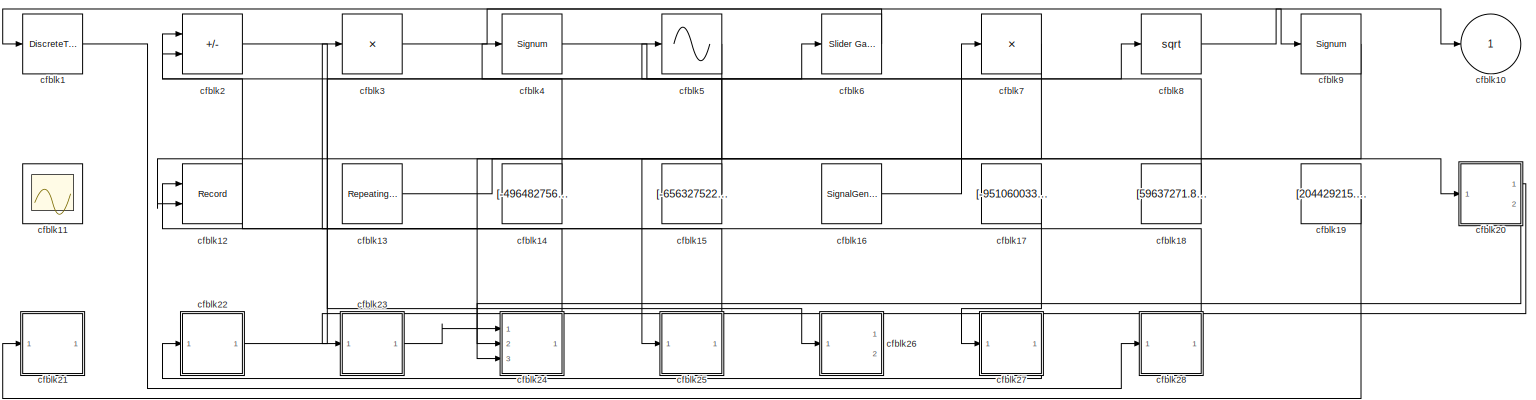
[diagram: root canvas - part 1/1, most of the canvas]
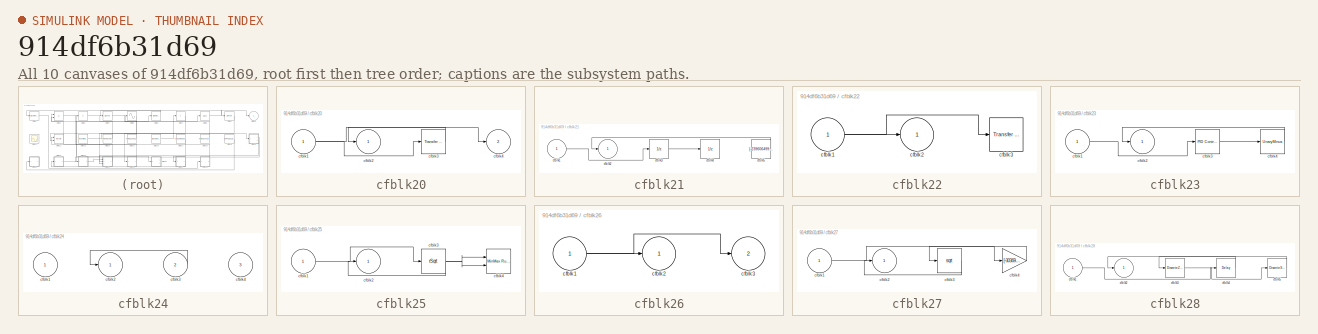
[diagram: thumbnail index - all 10 canvases of the model, root first then tree order]
MODEL slx_914df6b31d69
KIND model
CONFIG AbsTol = auto
CONFIG EnableMultiTasking = off
CONFIG FixedStep = auto
CONFIG MaxStep = auto
CONFIG MinStep = auto
CONFIG RelTol = 1e-3
CONFIG SampleTimeConstraint = Unconstrained
CONFIG SolverName = VariableStepAuto
CONFIG StartTime = 0.0
CONFIG StopTime = 10.0
BLOCK [DiscreteTransferFcn] cfblk1
  InputPortMap = u0
  Ports = [1, 1]
  SampleTime = 1
BLOCK [Outport] cfblk10
BLOCK [Scope] cfblk11
  Floating = on
  NumInputPorts = 1
  Ports = []
BLOCK [Record] cfblk12
  CompatibilityTag = XY
  FileSettingsInternal = {"entries":[{"content":{"excelSettings":{"content":{},"type":"Streamout.ExcelSettings"}},"type":"Streamout.FileSettingStorage","uuid":"817101b1-7ee6-489f-8bf2-f4af326754e9"}],"packageUris":["http://schema.mathworks.com/mf0/streamout_blocks/R2020a"],"version":"1.0"}
  Layout = [1 1]
  Ports = [2]
  SignalsInternal = {"entries":[{"content":{"signals":[{"content":{"blockPath":["sampleModel27/cfblk12"],"channel":[],"dimensions":[1],"domain":"sampleModel27/cfblk12","lineColor":"#a2142f","plots":[1],"port":1,"sid":[""],"signalID":1067,"signalName":"cfblk24"},"type":"RecordBlkView.Signal","uuid":"11552be4-8ecd-494b-946a-d208da3a0090"},{"content":{"blockPath":["sampleModel27/cfblk12"],"channel":[],"dimensions":[1],"...<+378ch>
  VisualizationBindings = {"xyplotplugin":{"info":[{"series":[{"bindingParametersList":[{"parameter":"X-Axis","signalID":1067,"signalName":"cfblk24"},{"parameter":"Y-Axis","signalID":1071,"signalName":"cfblk9"}],"seriesID":40632}],"subplotID":1}]}}
BLOCK [Reference] cfblk13  REF=simulink/Sources/Repeating
Sequence
Stair
  Ports = [0, 1]
  SourceBlock = simulink/Sources/Repeating\nSequence\nStair
  SourceProductBaseCode = SL
  SourceType = Repeating Sequence Stair
BLOCK [Constant] cfblk14
  SampleTime = 1
  Value = [-496482756.698732]
BLOCK [Constant] cfblk15
  SampleTime = 1
  Value = [-656327522.468899]
BLOCK [SignalGenerator] cfblk16
  Amplitude = [-317971779.391681]
  Ports = [0, 1]
BLOCK [Constant] cfblk17
  SampleTime = 1
  Value = [-951060033.355853]
BLOCK [Constant] cfblk18
  SampleTime = 1
  Value = [59637271.894851]
BLOCK [Constant] cfblk19
  SampleTime = 1
  Value = [204429215.996094]
BLOCK [Sum] cfblk2
  IconShape = rectangular
  Inputs = +-
  Ports = [2, 1]
BLOCK [SubSystem] cfblk20
  Ports = [1, 2]
  RequestExecContextInheritance = off
BLOCK [Inport] cfblk20/cfblk1
BLOCK [Outport] cfblk20/cfblk2
BLOCK [Reference] cfblk20/cfblk3  REF=simulink/Discrete/Transfer Fcn
Real Zero
  Ports = [1, 1]
  SourceBlock = simulink/Discrete/Transfer Fcn\nReal Zero
  SourceProductBaseCode = SL
  SourceType = Transfer Fcn Real Zero
BLOCK [Outport] cfblk20/cfblk4
  Port = 2
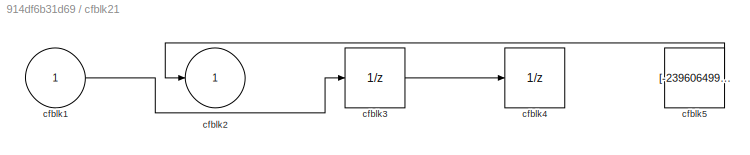
BLOCK [SubSystem] cfblk21
  Ports = [1, 1]
  RequestExecContextInheritance = off
BLOCK [Inport] cfblk21/cfblk1
BLOCK [Outport] cfblk21/cfblk2
BLOCK [UnitDelay] cfblk21/cfblk3
  HasFrameUpgradeWarning = on
BLOCK [UnitDelay] cfblk21/cfblk4
  HasFrameUpgradeWarning = on
BLOCK [Constant] cfblk21/cfblk5
  SampleTime = 1
  Value = [-239606499.983501]
BLOCK [SubSystem] cfblk22
  Ports = [1, 1]
  RequestExecContextInheritance = off
BLOCK [Inport] cfblk22/cfblk1
BLOCK [Outport] cfblk22/cfblk2
BLOCK [Reference] cfblk22/cfblk3  REF=simulink/Discrete/Transfer Fcn
Lead or Lag
  Ports = [1, 1]
  SourceBlock = simulink/Discrete/Transfer Fcn\nLead or Lag
  SourceProductBaseCode = SL
  SourceType = Lead or Lag Compensator
BLOCK [SubSystem] cfblk23
  Ports = [1, 1]
  RequestExecContextInheritance = off
BLOCK [Inport] cfblk23/cfblk1
BLOCK [Outport] cfblk23/cfblk2
BLOCK [Reference] cfblk23/cfblk3  REF=slpidlib/PID Controller
  Ports = [1, 1]
  SourceBlock = slpidlib/PID Controller
  SourceProductBaseCode = SL
  SourceType = PID 1dof
BLOCK [UnaryMinus] cfblk23/cfblk4
BLOCK [SubSystem] cfblk24
  Ports = [3, 1]
  RequestExecContextInheritance = off
BLOCK [Inport] cfblk24/cfblk1
BLOCK [Outport] cfblk24/cfblk2
BLOCK [Inport] cfblk24/cfblk3
  Port = 2
BLOCK [Inport] cfblk24/cfblk4
  Port = 3
BLOCK [SubSystem] cfblk25
  Ports = [1, 1]
  RequestExecContextInheritance = off
BLOCK [Inport] cfblk25/cfblk1
BLOCK [Outport] cfblk25/cfblk2
BLOCK [Sqrt] cfblk25/cfblk3
  AlgorithmType = Newton-Raphson
  Operator = rSqrt
BLOCK [Reference] cfblk25/cfblk4  REF=simulink/Math
Operations/MinMax
Running
Resettable
  Ports = [2, 1]
  SourceBlock = simulink/Math\nOperations/MinMax\nRunning\nResettable
  SourceProductBaseCode = SL
  SourceType = MinMax Running Resettable
BLOCK [SubSystem] cfblk26
  Ports = [1, 2]
  RequestExecContextInheritance = off
BLOCK [Inport] cfblk26/cfblk1
BLOCK [Outport] cfblk26/cfblk2
BLOCK [Outport] cfblk26/cfblk3
  Port = 2
BLOCK [SubSystem] cfblk27
  Ports = [1, 1]
  RequestExecContextInheritance = off
BLOCK [Inport] cfblk27/cfblk1
BLOCK [Outport] cfblk27/cfblk2
BLOCK [Sqrt] cfblk27/cfblk3
BLOCK [Gain] cfblk27/cfblk4
  Gain = [-303696228.953761]
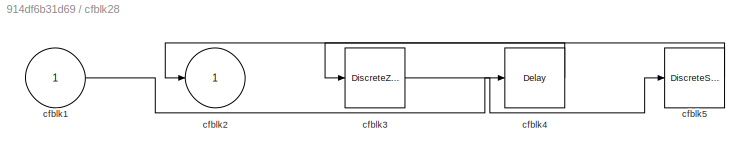
BLOCK [SubSystem] cfblk28
  Ports = [1, 1]
  RequestExecContextInheritance = off
BLOCK [Inport] cfblk28/cfblk1
BLOCK [Outport] cfblk28/cfblk2
BLOCK [DiscreteZeroPole] cfblk28/cfblk3
  Gain = 1
  Poles = [0 0.5]
BLOCK [Delay] cfblk28/cfblk4
  InputPortMap = u0
  Ports = [1, 1]
  SampleTime = 1
BLOCK [DiscreteStateSpace] cfblk28/cfblk5
BLOCK [Product] cfblk3
  Inputs = *
  Ports = [1, 1]
BLOCK [Signum] cfblk4
BLOCK [Sin] cfblk5
  Ports = [1, 1]
  SampleTime = 0
  TimeSource = Use external signal
BLOCK [Reference] cfblk6  REF=simulink/Math
Operations/Slider
Gain
  Ports = [1, 1]
  SourceBlock = simulink/Math\nOperations/Slider\nGain
  SourceProductBaseCode = SL
  SourceType = Slider Gain
BLOCK [Product] cfblk7
  Inputs = *
  Ports = [1, 1]
BLOCK [Sqrt] cfblk8
BLOCK [Signum] cfblk9
LINE cfblk13:1 -> cfblk20:1
LINE cfblk14:1 -> cfblk2:1
LINE cfblk15:1 -> cfblk5:1
LINE cfblk16:1 -> cfblk7:1
LINE cfblk17:1 -> cfblk27:1
LINE cfblk18:1 -> cfblk4:1
LINE cfblk19:1 -> cfblk21:1
LINE cfblk1:1 -> cfblk28:1
NET cfblk20/cfblk1:1 -> cfblk20/cfblk3:1, cfblk20/cfblk4:1
LINE cfblk20/cfblk3:1 -> cfblk20/cfblk2:1
LINE cfblk20:1 -> cfblk23:1
LINE cfblk20:2 -> cfblk24:3
LINE cfblk21/cfblk1:1 -> cfblk21/cfblk3:1
LINE cfblk21/cfblk3:1 -> cfblk21/cfblk4:1
LINE cfblk21/cfblk5:1 -> cfblk21/cfblk2:1
NET cfblk22/cfblk1:1 -> cfblk22/cfblk2:1, cfblk22/cfblk3:1
LINE cfblk22:1 -> cfblk8:1
LINE cfblk23/cfblk1:1 -> cfblk23/cfblk3:1
LINE cfblk23/cfblk3:1 -> cfblk23/cfblk4:1
LINE cfblk23/cfblk4:1 -> cfblk23/cfblk2:1
LINE cfblk23:1 -> cfblk24:1
LINE cfblk24/cfblk3:1 -> cfblk24/cfblk2:1
LINE cfblk24:1 -> cfblk12:1
LINE cfblk25/cfblk1:1 -> cfblk25/cfblk3:1
NET cfblk25/cfblk3:1 -> cfblk25/cfblk2:1, cfblk25/cfblk4:1, cfblk25/cfblk4:2
LINE cfblk25:1 -> cfblk2:2
NET cfblk26/cfblk1:1 -> cfblk26/cfblk2:1, cfblk26/cfblk3:1
LINE cfblk27/cfblk1:1 -> cfblk27/cfblk4:1
LINE cfblk27/cfblk3:1 -> cfblk27/cfblk2:1
LINE cfblk27/cfblk4:1 -> cfblk27/cfblk3:1
LINE cfblk27:1 -> cfblk22:1
LINE cfblk28/cfblk1:1 -> cfblk28/cfblk4:1
LINE cfblk28/cfblk3:1 -> cfblk28/cfblk5:1
LINE cfblk28/cfblk4:1 -> cfblk28/cfblk3:1
LINE cfblk28/cfblk5:1 -> cfblk28/cfblk2:1
LINE cfblk28:1 -> cfblk3:1
LINE cfblk2:1 -> cfblk26:1
LINE cfblk3:1 -> cfblk9:1
LINE cfblk4:1 -> cfblk6:1
LINE cfblk5:1 -> cfblk24:2
LINE cfblk6:1 -> cfblk1:1
LINE cfblk7:1 -> cfblk25:1
LINE cfblk8:1 -> cfblk10:1
LINE cfblk9:1 -> cfblk12:2
note: NET lines group one-source signal fan-out (src -> all destinations, sorted); 1:1 wires keep LINE
